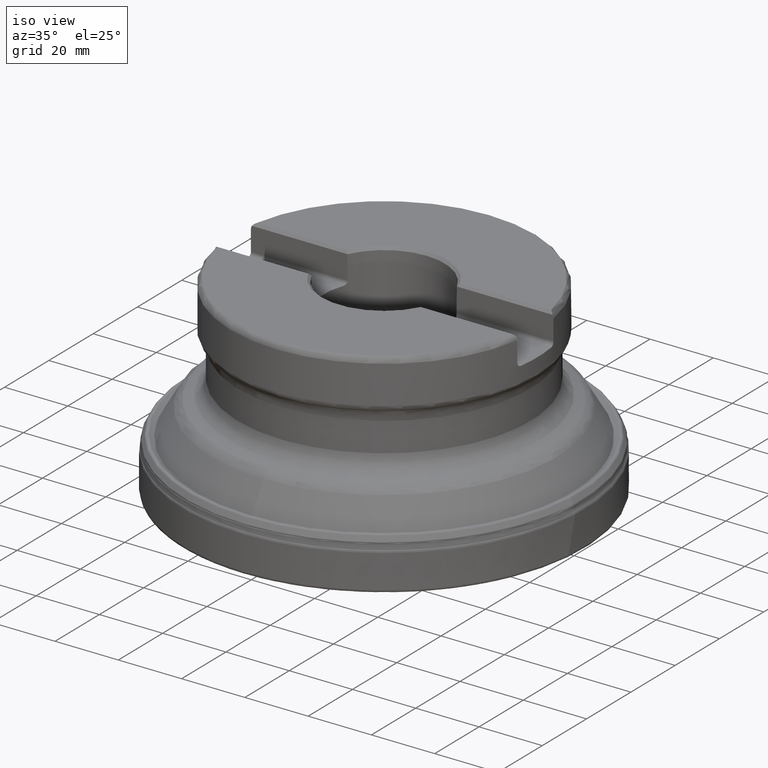
[diagram: clean part render]
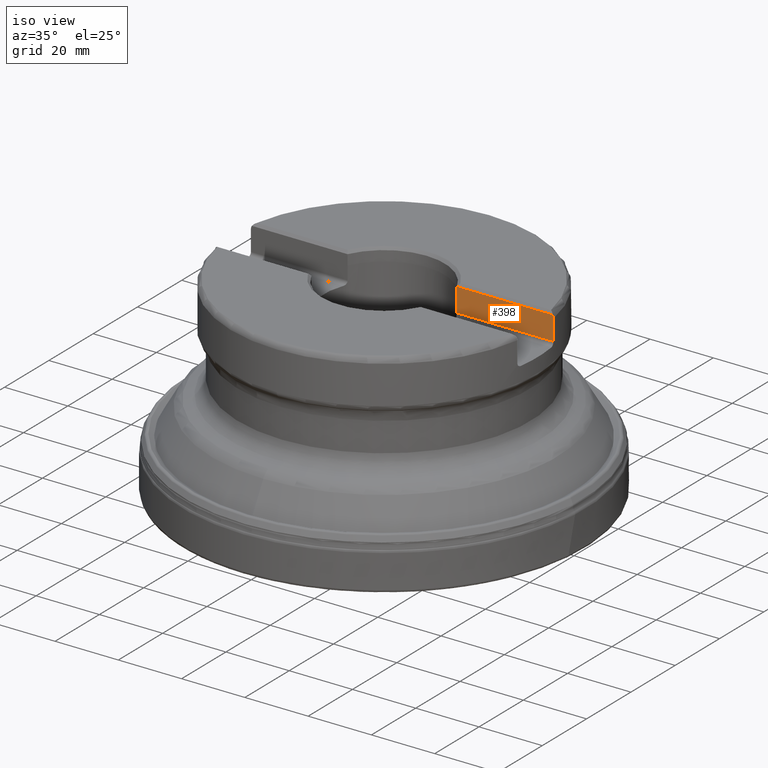
[diagram: same view with one face highlighted and labeled with its STEP entity id]
A machine part, iso view. The second image highlights one B-rep face of the part: STEP entity #398.
In plain terms, the highlighted planar face has unit normal (-0, -1, 0).
Its self-contained STEP definition (entity closure, byte-faithful):
#181=PLANE('',#1291);
#199=LINE('',#2033,#226);
#211=LINE('',#2233,#238);
#214=LINE('',#2291,#241);
#219=LINE('',#2305,#246);
#226=VECTOR('',#1351,1.);
#238=VECTOR('',#1449,1.);
#241=VECTOR('',#1508,1.);
#246=VECTOR('',#1521,1.);
#398=ADVANCED_FACE('',(#470),#181,.T.);
#470=FACE_OUTER_BOUND('',#538,.T.);
#538=EDGE_LOOP('',(#746,#747,#748,#749,#750,#751,#752));
#746=ORIENTED_EDGE('',*,*,#1047,.T.);
#747=ORIENTED_EDGE('',*,*,#1048,.T.);
#748=ORIENTED_EDGE('',*,*,#1026,.F.);
#749=ORIENTED_EDGE('',*,*,#1023,.F.);
#750=ORIENTED_EDGE('',*,*,#1041,.T.);
#751=ORIENTED_EDGE('',*,*,#974,.T.);
#752=ORIENTED_EDGE('',*,*,#964,.F.);
#865=VERTEX_POINT('',#1959);
#866=VERTEX_POINT('',#1970);
#874=VERTEX_POINT('',#2034);
#909=VERTEX_POINT('',#2157);
#916=VERTEX_POINT('',#2232);
#918=VERTEX_POINT('',#2252);
#931=VERTEX_POINT('',#2306);
#964=EDGE_CURVE('',#865,#866,#1168,.T.);
#974=EDGE_CURVE('',#874,#866,#199,.T.);
#1023=EDGE_CURVE('',#916,#909,#211,.T.);
#1026=EDGE_CURVE('',#909,#918,#1182,.T.);
#1041=EDGE_CURVE('',#916,#874,#214,.T.);
#1047=EDGE_CURVE('',#865,#931,#219,.T.);
#1048=EDGE_CURVE('',#931,#918,#1184,.T.);
#1168=B_SPLINE_CURVE_WITH_KNOTS('',3,(#1960,#1961,#1962,#1963,#1964,#1965,
#1966,#1967,#1968,#1969),.UNSPECIFIED.,.F.,.F.,(4,3,3,4),(0.,0.176331021509589,
0.820487325840416,1.),.UNSPECIFIED.);
#1182=B_SPLINE_CURVE_WITH_KNOTS('',3,(#2245,#2246,#2247,#2248,#2249,#2250,
#2251),.UNSPECIFIED.,.F.,.F.,(4,3,4),(0.,0.601682681700972,1.),
 .UNSPECIFIED.);
#1184=B_SPLINE_CURVE_WITH_KNOTS('',3,(#2307,#2308,#2309,#2310),
 .UNSPECIFIED.,.F.,.F.,(4,4),(0.,1.),.UNSPECIFIED.);
#1291=AXIS2_PLACEMENT_3D('',#2311,#1522,#1523);
#1351=DIRECTION('',(0.,1.17145536458252E-15,1.));
#1449=DIRECTION('',(1.17145536458252E-15,1.17145536458252E-15,1.));
#1508=DIRECTION('',(1.,-1.37230767120917E-30,-1.17145536458252E-15));
#1521=DIRECTION('',(-1.,6.39711790766089E-31,-7.49393809079628E-46));
#1522=DIRECTION('',(-6.39711790766089E-31,-1.,6.25372423561493E-16));
#1523=DIRECTION('',(1.16573417585641E-15,6.26235174827627E-16,1.));
#1959=CARTESIAN_POINT('',(47.5402053540359,8.14000000000007,59.525));
#1960=CARTESIAN_POINT('',(47.5402053540359,8.14000000000007,59.525));
#1961=CARTESIAN_POINT('',(47.5714053669161,8.14000000000007,59.4717351478712));
#1962=CARTESIAN_POINT('',(47.6001584602119,8.14000000000007,59.4169593822461));
#1963=CARTESIAN_POINT('',(47.6262699307819,8.14000000000007,59.361023916031));
#1964=CARTESIAN_POINT('',(47.7209341387211,8.14000000000007,59.1582361568825));
#1965=CARTESIAN_POINT('',(47.7816447019149,8.14000000000007,58.9360939923211));
#1966=CARTESIAN_POINT('',(47.8030180405361,8.14000000000007,58.7133219834838));
#1967=CARTESIAN_POINT('',(47.8090200783926,8.14000000000007,58.6507633886802));
#1968=CARTESIAN_POINT('',(47.8120319584973,8.14000000000007,58.5878458609798));
#1969=CARTESIAN_POINT('',(47.8120319584973,8.14000000000007,58.5250000000004));
#1970=CARTESIAN_POINT('',(47.8120319584973,8.14000000000007,58.5250000000004));
#2033=CARTESIAN_POINT('',(47.8120319584935,8.14000000000003,-5.09053152779058E-15));
#2034=CARTESIAN_POINT('',(47.8120319584935,8.14000000000006,51.9949999999999));
#2157=CARTESIAN_POINT('',(17.2233243016557,8.14000000000007,56.325));
#2232=CARTESIAN_POINT('',(17.2233243016557,8.14000000000006,51.995));
#2233=CARTESIAN_POINT('',(17.2233243016556,8.14000000000003,-2.52668871769096E-14));
#2245=CARTESIAN_POINT('',(17.2233243016557,8.14000000000007,56.325));
#2246=CARTESIAN_POINT('',(17.2417877371251,8.14000000000007,56.9624801250738));
#2247=CARTESIAN_POINT('',(17.260245756462,8.14000000000007,57.5999604070386));
#2248=CARTESIAN_POINT('',(17.2786984115606,8.14000000000007,58.2374408442547));
#2249=CARTESIAN_POINT('',(17.2909141729948,8.14000000000007,58.6594564782329));
#2250=CARTESIAN_POINT('',(17.3031275835298,8.14000000000007,59.0814721802671));
#2251=CARTESIAN_POINT('',(17.3153386580547,8.14000000000007,59.5034879498876));
#2252=CARTESIAN_POINT('',(17.3153386580547,8.14000000000007,59.5034879498876));
#2291=CARTESIAN_POINT('',(67.0000000000001,8.14000000000006,51.9949999999999));
#2305=CARTESIAN_POINT('',(67.0000000000001,8.14000000000007,59.525));
#2306=CARTESIAN_POINT('',(17.3391062539844,8.14000000000007,59.525));
#2307=CARTESIAN_POINT('',(17.3391062539844,8.14000000000007,59.525));
#2308=CARTESIAN_POINT('',(17.3311841641199,8.14000000000007,59.5178288281919));
#2309=CARTESIAN_POINT('',(17.3232616326596,8.14000000000007,59.51065814419));
#2310=CARTESIAN_POINT('',(17.3153386580547,8.14000000000007,59.5034879498876));
#2311=CARTESIAN_POINT('',(67.0000000000001,8.14000000000006,50.7949999999999));